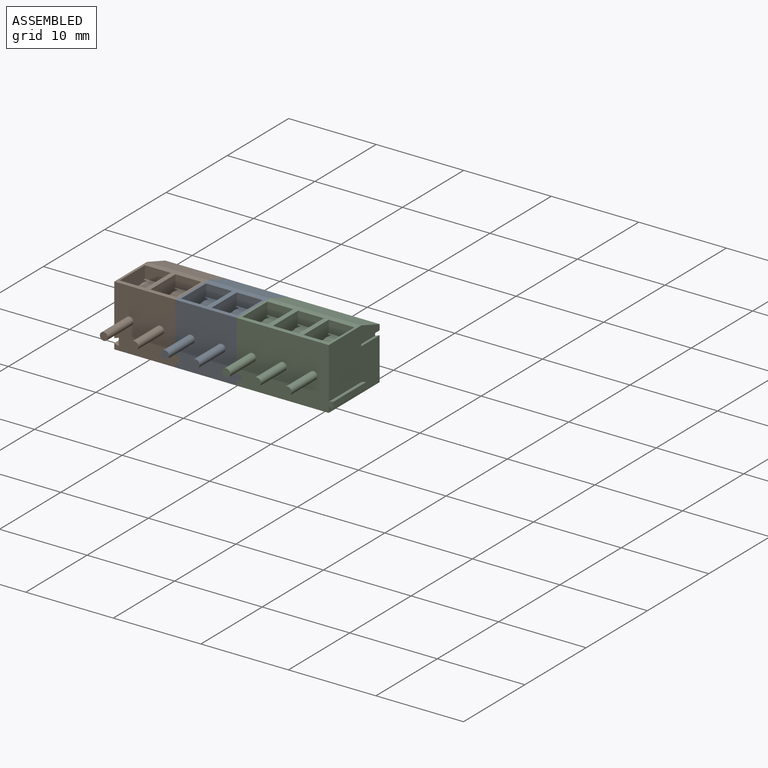
[diagram: assembled view]
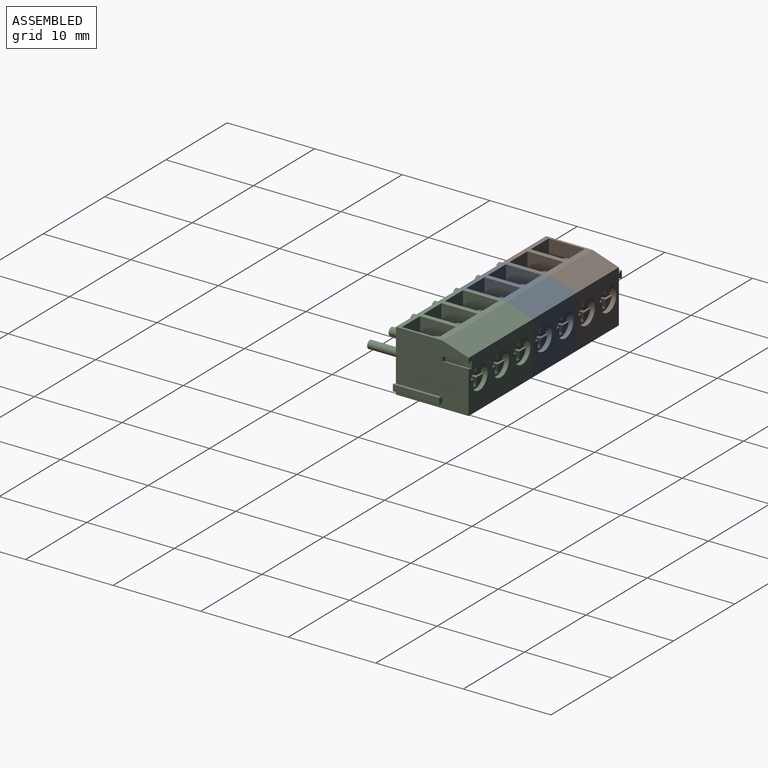
[diagram: assembled view, second angle]
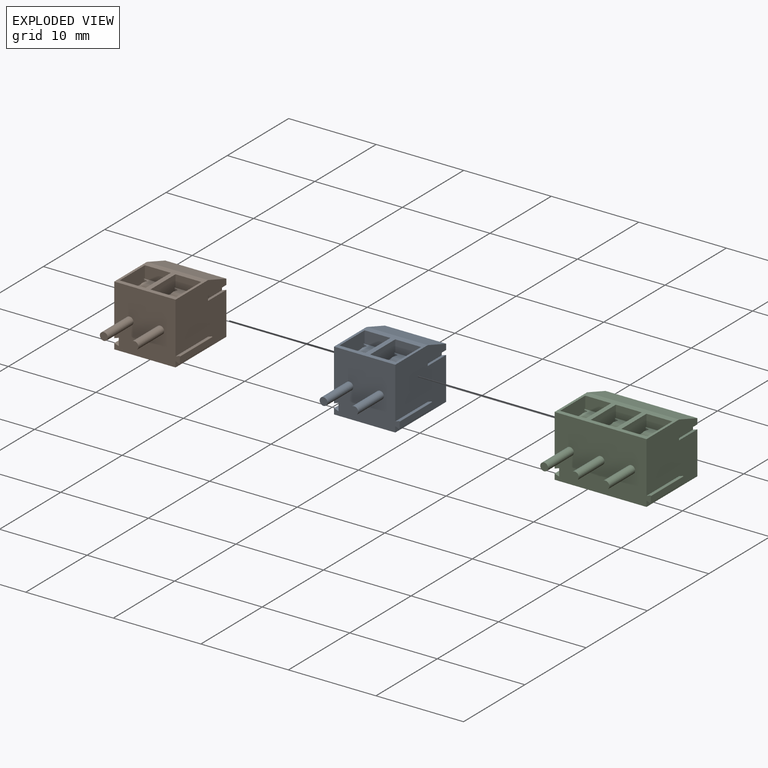
[diagram: exploded view]
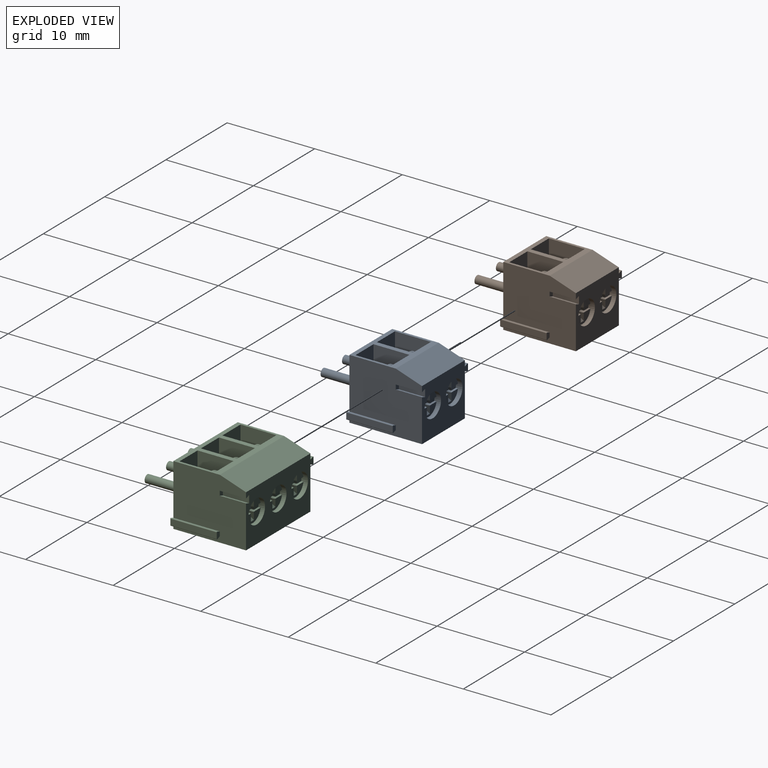
[diagram: exploded view, second angle]
ASSEMBLY  parts=3 mates=2
PART A: 123 faces, bbox 8x12.5x7 mm
  f0: plane 8.3x7mm, normal (-1,0,0), area 52.4mm2, adj f1,f2,f3,f4,f5,f6,f12,f19
  f1: plane 0.86x0.51mm, normal (0,-1,0), area 0.3mm2, adj f0,f2,f117,f118
  f2: plane 5.3x0.51mm, normal (0.32,0,-0.95), area 2.9mm2, adj f0,f1,f3,f118
  f3: plane 7.5x7mm, normal (0,-1,0), area 47.7mm2, adj f0,f2,f4,f8,f12,f13,f14,f16
  f4: plane 7x5.3mm, normal (0,0,1), area 12.9mm2, adj f0,f3,f5,f8,f73,f74,f93,f94
  f5: plane 7x3mm, normal (0,0.32,0.95), area 22.1mm2, adj f0,f4,f6,f8
  f6: plane 7.5x6mm, normal (0,1,0), area 30.5mm2, adj f0,f5,f7,f8,f10,f11,f12,f19
  f7: plane 3x0.51mm, normal (-0.32,0,0.95), area 1.6mm2, adj f6,f8,f9,f11
  f8: plane 8.3x7mm, normal (1,0,0), area 52.4mm2, adj f3,f4,f5,f6,f7,f9,f10,f12
  f9: plane 0.86x0.51mm, normal (0,1,0), area 0.3mm2, adj f7,f8,f10,f11
  f10: plane 3x0.51mm, normal (-0.32,0,-0.95), area 1.6mm2, adj f6,f8,f9,f11
  f11: plane 3x0.86mm, normal (1,0,0), area 2.6mm2, adj f6,f7,f9,f10
  f12: plane 8.3x7mm, normal (0,0,-1), area 58.1mm2, adj f0,f3,f6,f8
  f13: plane 5.3x0.42mm, normal (-0.33,0,-0.94), area 2.3mm2, adj f3,f8,f14,f15
  f14: cylinder r=0.06mm len=5.3mm, axis (0,1,0), area 0.6mm2, adj f3,f13,f15,f16
  f15: plane 0.8x0.5mm, normal (0,1,0), area 0.3mm2, adj f8,f13,f14,f16,f17,f18
  f16: plane 5.3x0.67mm, normal (1,0,0), area 3.6mm2, adj f3,f14,f15,f17
  f17: cylinder r=0.06mm len=5.3mm, axis (0,1,0), area 0.6mm2, adj f3,f15,f16,f18
  f18: plane 5.3x0.42mm, normal (-0.33,0,0.94), area 2.3mm2, adj f3,f8,f15,f17
  f19: plane 3x0.42mm, normal (0.33,0,0.94), area 1.3mm2, adj f0,f6,f20,f24
  f20: plane 0.8x0.5mm, normal (0,-1,0), area 0.3mm2, adj f0,f19,f21,f22,f23,f24
  f21: plane 3x0.42mm, normal (0.33,0,-0.94), area 1.3mm2, adj f0,f6,f20,f22
  f22: cylinder r=0.06mm len=3mm, axis (0,1,0), area 0.4mm2, adj f6,f20,f21,f23
  f23: plane 3x0.67mm, normal (-1,0,0), area 2mm2, adj f6,f20,f22,f24
  f24: cylinder r=0.06mm len=3mm, axis (0,1,0), area 0.4mm2, adj f6,f19,f20,f23
  f25: cylinder r=1.35mm len=2.7mm, axis (0,1,0), area 4.5mm2, adj f6,f26,f27,f31,f32,f33,f34,f37
  f26: plane 2.65x1.1mm, normal (0,1,0), area 1.8mm2, adj f25,f28,f29,f31,f32,f45
  f27: plane 2.65x1.1mm, normal (0,1,0), area 1.8mm2, adj f25,f37,f38,f39,f40,f41
  f28: plane 0.5x0.25mm, normal (0,0.65,-0.76), area 0.1mm2, adj f26,f29,f45,f46
  f29: plane 0.91x0.5mm, normal (0.97,0.24,0), area 0.3mm2, adj f26,f28,f30,f31,f46,f47
  f30: plane 0.5x0.25mm, normal (0,0.24,-0.97), area 0.1mm2, adj f29,f31,f35,f47
  f31: plane 1.14x0.25mm, normal (0,0,-1), area 0.3mm2, adj f25,f26,f29,f30,f33
  f32: plane 1.14x0.25mm, normal (0,0,-1), area 0.3mm2, adj f25,f26,f34,f44,f45
  f33: plane 0.73x0.5mm, normal (0,1,0), area 0.4mm2, adj f25,f31,f35,f37
  f34: plane 0.73x0.5mm, normal (0,1,0), area 0.4mm2, adj f25,f32,f38,f43
  f35: plane 0.5x0.25mm, normal (0.89,0.45,0), area 0.1mm2, adj f30,f33,f36,f47
  f36: plane 0.5x0.25mm, normal (0,0.24,0.97), area 0.1mm2, adj f35,f37,f39,f47
  f37: plane 1.14x0.25mm, normal (0,0,1), area 0.3mm2, adj f25,f27,f33,f36,f39
  f38: plane 1.14x0.25mm, normal (0,0,1), area 0.3mm2, adj f25,f27,f34,f41,f42
  f39: plane 0.91x0.5mm, normal (0.97,0.24,0), area 0.3mm2, adj f27,f36,f37,f40,f47,f48
  f40: plane 0.5x0.25mm, normal (0,0.65,0.76), area 0.1mm2, adj f27,f39,f41,f48
  f41: plane 0.91x0.5mm, normal (-0.97,0.24,0), area 0.3mm2, adj f27,f38,f40,f42,f47,f48
  f42: plane 0.5x0.25mm, normal (0,0.24,0.97), area 0.1mm2, adj f38,f41,f43,f47
  f43: plane 0.5x0.25mm, normal (-0.89,0.45,0), area 0.1mm2, adj f34,f42,f44,f47
  f44: plane 0.5x0.25mm, normal (0,0.24,-0.97), area 0.1mm2, adj f32,f43,f45,f47
  f45: plane 0.91x0.5mm, normal (-0.97,0.24,0), area 0.3mm2, adj f26,f28,f32,f44,f46,f47
  f46: plane 0.38x0.28mm, normal (0,0.74,-0.67), area 0.1mm2, adj f28,f29,f45,f47
  f47: plane 1.23x1mm, normal (0,1,0), area 0.6mm2, adj f29,f30,f35,f36,f39,f41,f42,f43
  f48: plane 0.38x0.28mm, normal (0,0.74,0.67), area 0.1mm2, adj f39,f40,f41,f47
  f49: cylinder r=1.35mm len=2.7mm, axis (0,1,0), area 4.5mm2, adj f6,f50,f51,f62,f63,f66,f67,f68
  f50: plane 2.65x1.1mm, normal (0,1,0), area 1.8mm2, adj f49,f52,f56,f57,f68,f69
  f51: plane 2.65x1.1mm, normal (0,1,0), area 1.8mm2, adj f49,f61,f62,f63,f70,f72
  f52: plane 0.91x0.5mm, normal (0.97,0.24,0), area 0.3mm2, adj f50,f53,f54,f55,f56,f68
  f53: plane 0.5x0.25mm, normal (0,0.24,0.97), area 0.1mm2, adj f52,f54,f65,f68
  f54: plane 1.23x1mm, normal (0,1,0), area 0.6mm2, adj f52,f53,f55,f57,f58,f59,f60,f61
  f55: plane 0.38x0.28mm, normal (0,0.74,0.67), area 0.1mm2, adj f52,f54,f56,f57
  f56: plane 0.5x0.25mm, normal (0,0.65,0.76), area 0.1mm2, adj f50,f52,f55,f57
  f57: plane 0.91x0.5mm, normal (-0.97,0.24,0), area 0.3mm2, adj f50,f54,f55,f56,f58,f69
  f58: plane 0.5x0.25mm, normal (0,0.24,0.97), area 0.1mm2, adj f54,f57,f59,f69
  f59: plane 0.5x0.25mm, normal (-0.89,0.45,0), area 0.1mm2, adj f54,f58,f60,f67
  f60: plane 0.5x0.25mm, normal (0,0.24,-0.97), area 0.1mm2, adj f54,f59,f61,f63
  f61: plane 0.91x0.5mm, normal (-0.97,0.24,0), area 0.3mm2, adj f51,f54,f60,f63,f71,f72
  f62: plane 1.14x0.25mm, normal (0,0,-1), area 0.3mm2, adj f49,f51,f64,f66,f70
  f63: plane 1.14x0.25mm, normal (0,0,-1), area 0.3mm2, adj f49,f51,f60,f61,f67
  f64: plane 0.5x0.25mm, normal (0,0.24,-0.97), area 0.1mm2, adj f54,f62,f65,f70
  f65: plane 0.5x0.25mm, normal (0.89,0.45,0), area 0.1mm2, adj f53,f54,f64,f66
  f66: plane 0.73x0.5mm, normal (0,1,0), area 0.4mm2, adj f49,f62,f65,f68
  f67: plane 0.73x0.5mm, normal (0,1,0), area 0.4mm2, adj f49,f59,f63,f69
  f68: plane 1.14x0.25mm, normal (0,0,1), area 0.3mm2, adj f49,f50,f52,f53,f66
  f69: plane 1.14x0.25mm, normal (0,0,1), area 0.3mm2, adj f49,f50,f57,f58,f67
  f70: plane 0.91x0.5mm, normal (0.97,0.24,0), area 0.3mm2, adj f51,f54,f62,f64,f71,f72
  f71: plane 0.38x0.28mm, normal (0,0.74,-0.67), area 0.1mm2, adj f54,f61,f70,f72
  f72: plane 0.5x0.25mm, normal (0,0.65,-0.76), area 0.1mm2, adj f51,f61,f70,f71
  f73: plane 4.1x1.7mm, normal (1,0,0), area 7mm2, adj f4,f74,f76,f94
  f74: plane 2.95x1.7mm, normal (0,-1,0), area 4.8mm2, adj f4,f73,f75,f76,f85,f86,f93
  f75: plane 0.46x0.34mm, normal (-1,0,0), area 0.1mm2, adj f74,f76,f85,f87,f88,f90
  f76: plane 4.1x2.95mm, normal (0,0,1), area 8.4mm2, adj f73,f74,f75,f77,f86,f87,f93,f94
  f77: cylinder r=1mm len=2mm, axis (0,0,1), area 6.3mm2, adj f76,f78
  f78: plane 2x2mm, normal (0,0,1), area 2.9mm2, adj f77,f79,f80,f81,f82
  f79: plane 1.65x1.45mm, normal (-1,0,0), area 0.5mm2, adj f78,f80,f82,f83,f84,f89,f90,f91
  f80: plane 1.45x0.9mm, normal (0,1,0), area 1.3mm2, adj f78,f79,f81,f91
  f81: plane 1.65x1.45mm, normal (1,0,0), area 0.5mm2, adj f78,f80,f82,f83,f84,f89,f91,f92
  f82: plane 1.45x0.9mm, normal (0,-1,0), area 1.3mm2, adj f78,f79,f81,f83
  f83: cylinder r=0.75mm len=1.45mm, axis (1,0,0), area 1.9mm2, adj f79,f81,f82,f84
  f84: plane 2.7x1.01mm, normal (0,0.17,0.98), area 1.8mm2, adj f79,f81,f83,f85,f90,f92
  f85: cylinder r=0.38mm len=2.7mm, axis (1,0,0), area 1.4mm2, adj f74,f75,f84,f86
  f86: plane 0.46x0.34mm, normal (1,0,0), area 0.1mm2, adj f74,f76,f85,f87,f88,f92
  f87: plane 2.7x0.09mm, normal (0,-1,0), area 0.2mm2, adj f75,f76,f86,f88
  f88: cylinder r=0.17mm len=2.7mm, axis (1,0,0), area 0.7mm2, adj f75,f86,f87,f89
  f89: plane 2.7x1.01mm, normal (0,-0.17,-0.98), area 1.8mm2, adj f79,f81,f88,f90,f91,f92
  f90: extruded ~0.63x0.48mm, area 0.2mm2, adj f75,f79,f84,f89
  f91: cylinder r=0.55mm len=1.45mm, axis (1,0,0), area 1.4mm2, adj f79,f80,f81,f89
  f92: extruded ~0.63x0.48mm, area 0.2mm2, adj f81,f84,f86,f89
  f93: plane 4.1x1.7mm, normal (-1,0,0), area 7mm2, adj f4,f74,f76,f94
  f94: plane 2.95x1.7mm, normal (0,1,0), area 5mm2, adj f4,f73,f76,f93
  f95: plane 4.1x1.7mm, normal (1,0,0), area 7mm2, adj f4,f96,f113,f115
  f96: plane 2.95x1.7mm, normal (0,-1,0), area 4.8mm2, adj f4,f95,f97,f103,f104,f113,f114
  f97: plane 0.46x0.34mm, normal (-1,0,0), area 0.1mm2, adj f96,f98,f99,f101,f103,f113
  f98: plane 2.7x0.09mm, normal (0,-1,0), area 0.2mm2, adj f97,f99,f104,f113
  f99: cylinder r=0.17mm len=2.7mm, axis (1,0,0), area 0.7mm2, adj f97,f98,f100,f104
  f100: plane 2.7x1.01mm, normal (0,-0.17,-0.98), area 1.8mm2, adj f99,f101,f105,f106,f108,f116
  f101: extruded ~0.63x0.48mm, area 0.2mm2, adj f97,f100,f102,f108
  f102: plane 2.7x1.01mm, normal (0,0.17,0.98), area 1.8mm2, adj f101,f103,f105,f106,f108,f110
  f103: cylinder r=0.38mm len=2.7mm, axis (1,0,0), area 1.4mm2, adj f96,f97,f102,f104
  f104: plane 0.46x0.34mm, normal (1,0,0), area 0.1mm2, adj f96,f98,f99,f103,f105,f113
  f105: extruded ~0.63x0.48mm, area 0.2mm2, adj f100,f102,f104,f106
  f106: plane 1.65x1.45mm, normal (1,0,0), area 0.5mm2, adj f100,f102,f105,f107,f109,f110,f111,f116
  f107: plane 1.45x0.9mm, normal (0,1,0), area 1.3mm2, adj f106,f108,f111,f116
  f108: plane 1.65x1.45mm, normal (-1,0,0), area 0.5mm2, adj f100,f101,f102,f107,f109,f110,f111,f116
  f109: plane 1.45x0.9mm, normal (0,-1,0), area 1.3mm2, adj f106,f108,f110,f111
  f110: cylinder r=0.75mm len=1.45mm, axis (1,0,0), area 1.9mm2, adj f102,f106,f108,f109
  f111: plane 2x2mm, normal (0,0,1), area 2.9mm2, adj f106,f107,f108,f109,f112
  f112: cylinder r=1mm len=2mm, axis (0,0,1), area 6.3mm2, adj f111,f113
  f113: plane 4.1x2.95mm, normal (0,0,1), area 8.4mm2, adj f95,f96,f97,f98,f104,f112,f114,f115
  f114: plane 4.1x1.7mm, normal (-1,0,0), area 7mm2, adj f4,f96,f113,f115
  f115: plane 2.95x1.7mm, normal (0,1,0), area 5mm2, adj f4,f95,f113,f114
  f116: cylinder r=0.55mm len=1.45mm, axis (1,0,0), area 1.4mm2, adj f100,f106,f107,f108
  f117: plane 5.3x0.51mm, normal (0.32,0,0.95), area 2.9mm2, adj f0,f1,f3,f118
  f118: plane 5.3x0.86mm, normal (-1,0,0), area 4.6mm2, adj f1,f2,f3,f117
  f119: cylinder r=0.45mm len=4.2mm, axis (0,-1,0), area 11.9mm2, adj f3,f120
  f120: plane 0.9x0.9mm, normal (0,-1,0), area 0.6mm2, adj f119
  f121: cylinder r=0.45mm len=4.2mm, axis (0,-1,0), area 11.9mm2, adj f3,f122
  f122: plane 0.9x0.9mm, normal (0,-1,0), area 0.6mm2, adj f121
PART B: same geometry as A
PART C: 171 faces, bbox 11.5x12.5x7 mm
  f0: plane 8.3x7mm, normal (-1,0,0), area 52.4mm2, adj f1,f2,f3,f4,f5,f6,f12,f19
  f1: plane 0.86x0.51mm, normal (0,-1,0), area 0.3mm2, adj f0,f2,f163,f164
  f2: plane 5.3x0.51mm, normal (0.32,0,-0.95), area 2.9mm2, adj f0,f1,f3,f164
  f3: plane 11x7mm, normal (0,-1,0), area 71.6mm2, adj f0,f2,f4,f8,f12,f13,f14,f16
  f4: plane 10.5x5.3mm, normal (0,0,1), area 19.4mm2, adj f0,f3,f5,f8,f97,f98,f117,f118
  f5: plane 10.5x3mm, normal (0,0.32,0.95), area 33.2mm2, adj f0,f4,f6,f8
  f6: plane 11x6mm, normal (0,1,0), area 45.8mm2, adj f0,f5,f7,f8,f10,f11,f12,f19
  f7: plane 3x0.51mm, normal (-0.32,0,0.95), area 1.6mm2, adj f6,f8,f9,f11
  f8: plane 8.3x7mm, normal (1,0,0), area 52.4mm2, adj f3,f4,f5,f6,f7,f9,f10,f12
  f9: plane 0.86x0.51mm, normal (0,1,0), area 0.3mm2, adj f7,f8,f10,f11
  f10: plane 3x0.51mm, normal (-0.32,0,-0.95), area 1.6mm2, adj f6,f8,f9,f11
  f11: plane 3x0.86mm, normal (1,0,0), area 2.6mm2, adj f6,f7,f9,f10
  f12: plane 10.5x8.3mm, normal (0,0,-1), area 87.2mm2, adj f0,f3,f6,f8
  f13: plane 5.3x0.42mm, normal (-0.33,0,-0.94), area 2.3mm2, adj f3,f8,f14,f15
  f14: cylinder r=0.06mm len=5.3mm, axis (0,1,0), area 0.6mm2, adj f3,f13,f15,f16
  f15: plane 0.8x0.5mm, normal (0,1,0), area 0.3mm2, adj f8,f13,f14,f16,f17,f18
  f16: plane 5.3x0.67mm, normal (1,0,0), area 3.6mm2, adj f3,f14,f15,f17
  f17: cylinder r=0.06mm len=5.3mm, axis (0,1,0), area 0.6mm2, adj f3,f15,f16,f18
  f18: plane 5.3x0.42mm, normal (-0.33,0,0.94), area 2.3mm2, adj f3,f8,f15,f17
  f19: plane 3x0.42mm, normal (0.33,0,0.94), area 1.3mm2, adj f0,f6,f20,f24
  f20: plane 0.8x0.5mm, normal (0,-1,0), area 0.3mm2, adj f0,f19,f21,f22,f23,f24
  f21: plane 3x0.42mm, normal (0.33,0,-0.94), area 1.3mm2, adj f0,f6,f20,f22
  f22: cylinder r=0.06mm len=3mm, axis (0,1,0), area 0.4mm2, adj f6,f20,f21,f23
  f23: plane 3x0.67mm, normal (-1,0,0), area 2mm2, adj f6,f20,f22,f24
  f24: cylinder r=0.06mm len=3mm, axis (0,1,0), area 0.4mm2, adj f6,f19,f20,f23
  f25: cylinder r=1.35mm len=2.7mm, axis (0,1,0), area 4.5mm2, adj f6,f26,f27,f31,f32,f33,f34,f37
  f26: plane 2.65x1.1mm, normal (0,1,0), area 1.8mm2, adj f25,f28,f29,f31,f32,f45
  f27: plane 2.65x1.1mm, normal (0,1,0), area 1.8mm2, adj f25,f37,f38,f39,f40,f41
  f28: plane 0.5x0.25mm, normal (0,0.65,-0.76), area 0.1mm2, adj f26,f29,f45,f46
  f29: plane 0.91x0.5mm, normal (0.97,0.24,0), area 0.3mm2, adj f26,f28,f30,f31,f46,f47
  f30: plane 0.5x0.25mm, normal (0,0.24,-0.97), area 0.1mm2, adj f29,f31,f35,f47
  f31: plane 1.14x0.25mm, normal (0,0,-1), area 0.3mm2, adj f25,f26,f29,f30,f33
  f32: plane 1.14x0.25mm, normal (0,0,-1), area 0.3mm2, adj f25,f26,f34,f44,f45
  f33: plane 0.73x0.5mm, normal (0,1,0), area 0.4mm2, adj f25,f31,f35,f37
  f34: plane 0.73x0.5mm, normal (0,1,0), area 0.4mm2, adj f25,f32,f38,f43
  f35: plane 0.5x0.25mm, normal (0.89,0.45,0), area 0.1mm2, adj f30,f33,f36,f47
  f36: plane 0.5x0.25mm, normal (0,0.24,0.97), area 0.1mm2, adj f35,f37,f39,f47
  f37: plane 1.14x0.25mm, normal (0,0,1), area 0.3mm2, adj f25,f27,f33,f36,f39
  f38: plane 1.14x0.25mm, normal (0,0,1), area 0.3mm2, adj f25,f27,f34,f41,f42
  f39: plane 0.91x0.5mm, normal (0.97,0.24,0), area 0.3mm2, adj f27,f36,f37,f40,f47,f48
  f40: plane 0.5x0.25mm, normal (0,0.65,0.76), area 0.1mm2, adj f27,f39,f41,f48
  f41: plane 0.91x0.5mm, normal (-0.97,0.24,0), area 0.3mm2, adj f27,f38,f40,f42,f47,f48
  f42: plane 0.5x0.25mm, normal (0,0.24,0.97), area 0.1mm2, adj f38,f41,f43,f47
  f43: plane 0.5x0.25mm, normal (-0.89,0.45,0), area 0.1mm2, adj f34,f42,f44,f47
  f44: plane 0.5x0.25mm, normal (0,0.24,-0.97), area 0.1mm2, adj f32,f43,f45,f47
  f45: plane 0.91x0.5mm, normal (-0.97,0.24,0), area 0.3mm2, adj f26,f28,f32,f44,f46,f47
  f46: plane 0.38x0.28mm, normal (0,0.74,-0.67), area 0.1mm2, adj f28,f29,f45,f47
  f47: plane 1.23x1mm, normal (0,1,0), area 0.6mm2, adj f29,f30,f35,f36,f39,f41,f42,f43
  f48: plane 0.38x0.28mm, normal (0,0.74,0.67), area 0.1mm2, adj f39,f40,f41,f47
  f49: cylinder r=1.35mm len=2.7mm, axis (0,1,0), area 4.5mm2, adj f6,f50,f51,f62,f63,f66,f67,f68
  f50: plane 2.65x1.1mm, normal (0,1,0), area 1.8mm2, adj f49,f52,f56,f57,f68,f69
  f51: plane 2.65x1.1mm, normal (0,1,0), area 1.8mm2, adj f49,f61,f62,f63,f70,f72
  f52: plane 0.91x0.5mm, normal (0.97,0.24,0), area 0.3mm2, adj f50,f53,f54,f55,f56,f68
  f53: plane 0.5x0.25mm, normal (0,0.24,0.97), area 0.1mm2, adj f52,f54,f65,f68
  f54: plane 1.23x1mm, normal (0,1,0), area 0.6mm2, adj f52,f53,f55,f57,f58,f59,f60,f61
  f55: plane 0.38x0.28mm, normal (0,0.74,0.67), area 0.1mm2, adj f52,f54,f56,f57
  f56: plane 0.5x0.25mm, normal (0,0.65,0.76), area 0.1mm2, adj f50,f52,f55,f57
  f57: plane 0.91x0.5mm, normal (-0.97,0.24,0), area 0.3mm2, adj f50,f54,f55,f56,f58,f69
  f58: plane 0.5x0.25mm, normal (0,0.24,0.97), area 0.1mm2, adj f54,f57,f59,f69
  f59: plane 0.5x0.25mm, normal (-0.89,0.45,0), area 0.1mm2, adj f54,f58,f60,f67
  f60: plane 0.5x0.25mm, normal (0,0.24,-0.97), area 0.1mm2, adj f54,f59,f61,f63
  f61: plane 0.91x0.5mm, normal (-0.97,0.24,0), area 0.3mm2, adj f51,f54,f60,f63,f71,f72
  f62: plane 1.14x0.25mm, normal (0,0,-1), area 0.3mm2, adj f49,f51,f64,f66,f70
  f63: plane 1.14x0.25mm, normal (0,0,-1), area 0.3mm2, adj f49,f51,f60,f61,f67
  f64: plane 0.5x0.25mm, normal (0,0.24,-0.97), area 0.1mm2, adj f54,f62,f65,f70
  f65: plane 0.5x0.25mm, normal (0.89,0.45,0), area 0.1mm2, adj f53,f54,f64,f66
  f66: plane 0.73x0.5mm, normal (0,1,0), area 0.4mm2, adj f49,f62,f65,f68
  f67: plane 0.73x0.5mm, normal (0,1,0), area 0.4mm2, adj f49,f59,f63,f69
  f68: plane 1.14x0.25mm, normal (0,0,1), area 0.3mm2, adj f49,f50,f52,f53,f66
  f69: plane 1.14x0.25mm, normal (0,0,1), area 0.3mm2, adj f49,f50,f57,f58,f67
  f70: plane 0.91x0.5mm, normal (0.97,0.24,0), area 0.3mm2, adj f51,f54,f62,f64,f71,f72
  f71: plane 0.38x0.28mm, normal (0,0.74,-0.67), area 0.1mm2, adj f54,f61,f70,f72
  f72: plane 0.5x0.25mm, normal (0,0.65,-0.76), area 0.1mm2, adj f51,f61,f70,f71
  f73: cylinder r=1.35mm len=2.7mm, axis (0,1,0), area 4.5mm2, adj f6,f74,f75,f86,f87,f90,f91,f92
  f74: plane 2.65x1.1mm, normal (0,1,0), area 1.8mm2, adj f73,f76,f80,f81,f92,f93
  f75: plane 2.65x1.1mm, normal (0,1,0), area 1.8mm2, adj f73,f85,f86,f87,f94,f96
  f76: plane 0.91x0.5mm, normal (0.97,0.24,0), area 0.3mm2, adj f74,f77,f78,f79,f80,f92
  f77: plane 0.5x0.25mm, normal (0,0.24,0.97), area 0.1mm2, adj f76,f78,f89,f92
  f78: plane 1.23x1mm, normal (0,1,0), area 0.6mm2, adj f76,f77,f79,f81,f82,f83,f84,f85
  f79: plane 0.38x0.28mm, normal (0,0.74,0.67), area 0.1mm2, adj f76,f78,f80,f81
  f80: plane 0.5x0.25mm, normal (0,0.65,0.76), area 0.1mm2, adj f74,f76,f79,f81
  f81: plane 0.91x0.5mm, normal (-0.97,0.24,0), area 0.3mm2, adj f74,f78,f79,f80,f82,f93
  f82: plane 0.5x0.25mm, normal (0,0.24,0.97), area 0.1mm2, adj f78,f81,f83,f93
  f83: plane 0.5x0.25mm, normal (-0.89,0.45,0), area 0.1mm2, adj f78,f82,f84,f91
  f84: plane 0.5x0.25mm, normal (0,0.24,-0.97), area 0.1mm2, adj f78,f83,f85,f87
  f85: plane 0.91x0.5mm, normal (-0.97,0.24,0), area 0.3mm2, adj f75,f78,f84,f87,f95,f96
  f86: plane 1.14x0.25mm, normal (0,0,-1), area 0.3mm2, adj f73,f75,f88,f90,f94
  f87: plane 1.14x0.25mm, normal (0,0,-1), area 0.3mm2, adj f73,f75,f84,f85,f91
  f88: plane 0.5x0.25mm, normal (0,0.24,-0.97), area 0.1mm2, adj f78,f86,f89,f94
  f89: plane 0.5x0.25mm, normal (0.89,0.45,0), area 0.1mm2, adj f77,f78,f88,f90
  f90: plane 0.73x0.5mm, normal (0,1,0), area 0.4mm2, adj f73,f86,f89,f92
  f91: plane 0.73x0.5mm, normal (0,1,0), area 0.4mm2, adj f73,f83,f87,f93
  f92: plane 1.14x0.25mm, normal (0,0,1), area 0.3mm2, adj f73,f74,f76,f77,f90
  f93: plane 1.14x0.25mm, normal (0,0,1), area 0.3mm2, adj f73,f74,f81,f82,f91
  f94: plane 0.91x0.5mm, normal (0.97,0.24,0), area 0.3mm2, adj f75,f78,f86,f88,f95,f96
  f95: plane 0.38x0.28mm, normal (0,0.74,-0.67), area 0.1mm2, adj f78,f85,f94,f96
  f96: plane 0.5x0.25mm, normal (0,0.65,-0.76), area 0.1mm2, adj f75,f85,f94,f95
  f97: plane 4.1x1.7mm, normal (1,0,0), area 7mm2, adj f4,f98,f100,f118
  f98: plane 2.95x1.7mm, normal (0,-1,0), area 4.8mm2, adj f4,f97,f99,f100,f109,f110,f117
  f99: plane 0.46x0.34mm, normal (-1,0,0), area 0.1mm2, adj f98,f100,f109,f111,f112,f114
  f100: plane 4.1x2.95mm, normal (0,0,1), area 8.4mm2, adj f97,f98,f99,f101,f110,f111,f117,f118
  f101: cylinder r=1mm len=2mm, axis (0,0,1), area 6.3mm2, adj f100,f102
  f102: plane 2x2mm, normal (0,0,1), area 2.9mm2, adj f101,f103,f104,f105,f106
  f103: plane 1.65x1.45mm, normal (-1,0,0), area 0.5mm2, adj f102,f104,f106,f107,f108,f113,f114,f115
  f104: plane 1.45x0.9mm, normal (0,1,0), area 1.3mm2, adj f102,f103,f105,f115
  f105: plane 1.65x1.45mm, normal (1,0,0), area 0.5mm2, adj f102,f104,f106,f107,f108,f113,f115,f116
  f106: plane 1.45x0.9mm, normal (0,-1,0), area 1.3mm2, adj f102,f103,f105,f107
  f107: cylinder r=0.75mm len=1.45mm, axis (1,0,0), area 1.9mm2, adj f103,f105,f106,f108
  f108: plane 2.7x1.01mm, normal (0,0.17,0.98), area 1.8mm2, adj f103,f105,f107,f109,f114,f116
  f109: cylinder r=0.38mm len=2.7mm, axis (1,0,0), area 1.4mm2, adj f98,f99,f108,f110
  f110: plane 0.46x0.34mm, normal (1,0,0), area 0.1mm2, adj f98,f100,f109,f111,f112,f116
  f111: plane 2.7x0.09mm, normal (0,-1,0), area 0.2mm2, adj f99,f100,f110,f112
  f112: cylinder r=0.17mm len=2.7mm, axis (1,0,0), area 0.7mm2, adj f99,f110,f111,f113
  f113: plane 2.7x1.01mm, normal (0,-0.17,-0.98), area 1.8mm2, adj f103,f105,f112,f114,f115,f116
  f114: extruded ~0.63x0.48mm, area 0.2mm2, adj f99,f103,f108,f113
  f115: cylinder r=0.55mm len=1.45mm, axis (1,0,0), area 1.4mm2, adj f103,f104,f105,f113
  f116: extruded ~0.63x0.48mm, area 0.2mm2, adj f105,f108,f110,f113
  f117: plane 4.1x1.7mm, normal (-1,0,0), area 7mm2, adj f4,f98,f100,f118
  f118: plane 2.95x1.7mm, normal (0,1,0), area 5mm2, adj f4,f97,f100,f117
  f119: plane 4.1x1.7mm, normal (1,0,0), area 7mm2, adj f4,f120,f137,f139
  f120: plane 2.95x1.7mm, normal (0,-1,0), area 4.8mm2, adj f4,f119,f121,f127,f128,f137,f138
  f121: plane 0.46x0.34mm, normal (-1,0,0), area 0.1mm2, adj f120,f122,f123,f125,f127,f137
  f122: plane 2.7x0.09mm, normal (0,-1,0), area 0.2mm2, adj f121,f123,f128,f137
  f123: cylinder r=0.17mm len=2.7mm, axis (1,0,0), area 0.7mm2, adj f121,f122,f124,f128
  f124: plane 2.7x1.01mm, normal (0,-0.17,-0.98), area 1.8mm2, adj f123,f125,f129,f130,f132,f140
  f125: extruded ~0.63x0.48mm, area 0.2mm2, adj f121,f124,f126,f132
  f126: plane 2.7x1.01mm, normal (0,0.17,0.98), area 1.8mm2, adj f125,f127,f129,f130,f132,f134
  f127: cylinder r=0.38mm len=2.7mm, axis (1,0,0), area 1.4mm2, adj f120,f121,f126,f128
  f128: plane 0.46x0.34mm, normal (1,0,0), area 0.1mm2, adj f120,f122,f123,f127,f129,f137
  f129: extruded ~0.63x0.48mm, area 0.2mm2, adj f124,f126,f128,f130
  f130: plane 1.65x1.45mm, normal (1,0,0), area 0.5mm2, adj f124,f126,f129,f131,f133,f134,f135,f140
  f131: plane 1.45x0.9mm, normal (0,1,0), area 1.3mm2, adj f130,f132,f135,f140
  f132: plane 1.65x1.45mm, normal (-1,0,0), area 0.5mm2, adj f124,f125,f126,f131,f133,f134,f135,f140
  f133: plane 1.45x0.9mm, normal (0,-1,0), area 1.3mm2, adj f130,f132,f134,f135
  f134: cylinder r=0.75mm len=1.45mm, axis (1,0,0), area 1.9mm2, adj f126,f130,f132,f133
  f135: plane 2x2mm, normal (0,0,1), area 2.9mm2, adj f130,f131,f132,f133,f136
  f136: cylinder r=1mm len=2mm, axis (0,0,1), area 6.3mm2, adj f135,f137
  f137: plane 4.1x2.95mm, normal (0,0,1), area 8.4mm2, adj f119,f120,f121,f122,f128,f136,f138,f139
  f138: plane 4.1x1.7mm, normal (-1,0,0), area 7mm2, adj f4,f120,f137,f139
  f139: plane 2.95x1.7mm, normal (0,1,0), area 5mm2, adj f4,f119,f137,f138
  f140: cylinder r=0.55mm len=1.45mm, axis (1,0,0), area 1.4mm2, adj f124,f130,f131,f132
  f141: plane 4.1x1.7mm, normal (1,0,0), area 7mm2, adj f4,f142,f159,f161
  f142: plane 2.95x1.7mm, normal (0,-1,0), area 4.8mm2, adj f4,f141,f143,f149,f150,f159,f160
  f143: plane 0.46x0.34mm, normal (-1,0,0), area 0.1mm2, adj f142,f144,f145,f147,f149,f159
  f144: plane 2.7x0.09mm, normal (0,-1,0), area 0.2mm2, adj f143,f145,f150,f159
  f145: cylinder r=0.17mm len=2.7mm, axis (1,0,0), area 0.7mm2, adj f143,f144,f146,f150
  f146: plane 2.7x1.01mm, normal (0,-0.17,-0.98), area 1.8mm2, adj f145,f147,f151,f152,f154,f162
  f147: extruded ~0.63x0.48mm, area 0.2mm2, adj f143,f146,f148,f154
  f148: plane 2.7x1.01mm, normal (0,0.17,0.98), area 1.8mm2, adj f147,f149,f151,f152,f154,f156
  f149: cylinder r=0.38mm len=2.7mm, axis (1,0,0), area 1.4mm2, adj f142,f143,f148,f150
  f150: plane 0.46x0.34mm, normal (1,0,0), area 0.1mm2, adj f142,f144,f145,f149,f151,f159
  f151: extruded ~0.63x0.48mm, area 0.2mm2, adj f146,f148,f150,f152
  f152: plane 1.65x1.45mm, normal (1,0,0), area 0.5mm2, adj f146,f148,f151,f153,f155,f156,f157,f162
  f153: plane 1.45x0.9mm, normal (0,1,0), area 1.3mm2, adj f152,f154,f157,f162
  f154: plane 1.65x1.45mm, normal (-1,0,0), area 0.5mm2, adj f146,f147,f148,f153,f155,f156,f157,f162
  f155: plane 1.45x0.9mm, normal (0,-1,0), area 1.3mm2, adj f152,f154,f156,f157
  f156: cylinder r=0.75mm len=1.45mm, axis (1,0,0), area 1.9mm2, adj f148,f152,f154,f155
  f157: plane 2x2mm, normal (0,0,1), area 2.9mm2, adj f152,f153,f154,f155,f158
  f158: cylinder r=1mm len=2mm, axis (0,0,1), area 6.3mm2, adj f157,f159
  f159: plane 4.1x2.95mm, normal (0,0,1), area 8.4mm2, adj f141,f142,f143,f144,f150,f158,f160,f161
  f160: plane 4.1x1.7mm, normal (-1,0,0), area 7mm2, adj f4,f142,f159,f161
  f161: plane 2.95x1.7mm, normal (0,1,0), area 5mm2, adj f4,f141,f159,f160
  f162: cylinder r=0.55mm len=1.45mm, axis (1,0,0), area 1.4mm2, adj f146,f152,f153,f154
  f163: plane 5.3x0.51mm, normal (0.32,0,0.95), area 2.9mm2, adj f0,f1,f3,f164
  f164: plane 5.3x0.86mm, normal (-1,0,0), area 4.6mm2, adj f1,f2,f3,f163
  f165: cylinder r=0.45mm len=4.2mm, axis (0,-1,0), area 11.9mm2, adj f3,f166
  f166: plane 0.9x0.9mm, normal (0,-1,0), area 0.6mm2, adj f165
  f167: cylinder r=0.45mm len=4.2mm, axis (0,-1,0), area 11.9mm2, adj f3,f168
  f168: plane 0.9x0.9mm, normal (0,-1,0), area 0.6mm2, adj f167
  f169: cylinder r=0.45mm len=4.2mm, axis (0,-1,0), area 11.9mm2, adj f3,f170
  f170: plane 0.9x0.9mm, normal (0,-1,0), area 0.6mm2, adj f169
PLACE A t=(7,0,0)mm
PLACE B at identity fixed
PLACE C t=(15.75,-0.01,-0.01)mm
MATE fastened C.f0 <-> A.f8  axis (-1,0,0) through (10.5,2.06,-3.51)mm
MATE fastened A.f0 <-> B.f8  axis (-1,0,0) through (3.5,2.06,-3.51)mm
